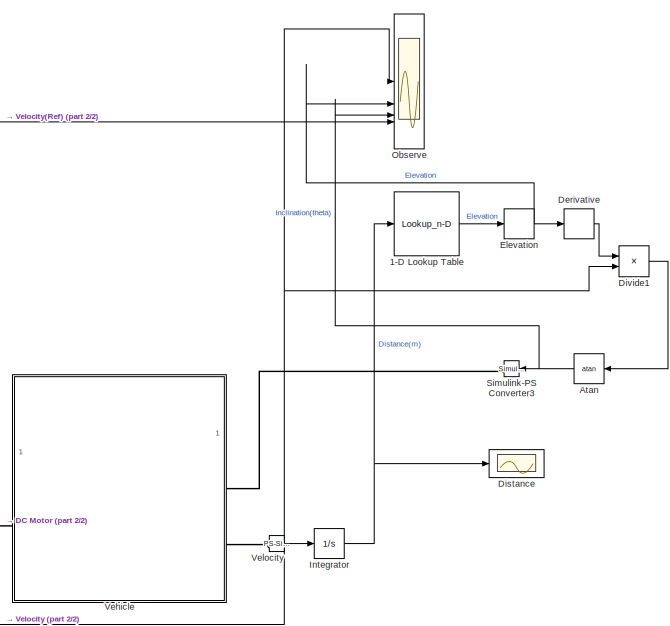
[diagram: root canvas - part 1/2, right side, full height]
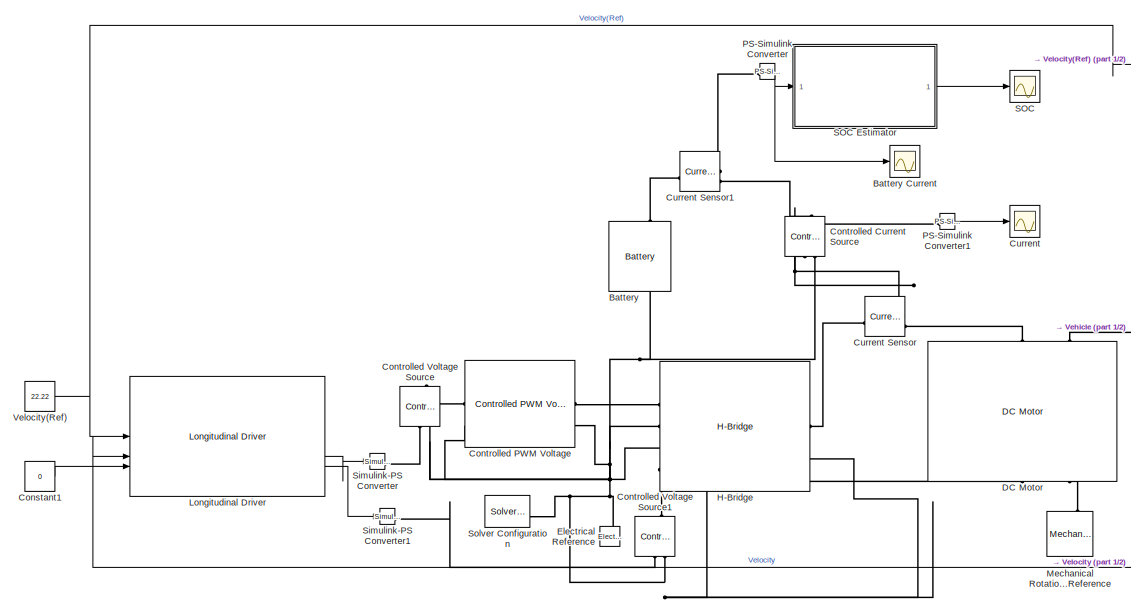
[diagram: root canvas - part 2/2, left side, full height]
MODEL slx_235e566d8c76
KIND model
CONFIG AbsTol = auto
CONFIG EnableMultiTasking = off
CONFIG FixedStep = 0.0001
CONFIG MaxStep = auto
CONFIG MinStep = auto
CONFIG RelTol = 1e-3
CONFIG SampleTimeConstraint = Unconstrained
CONFIG SolverName = VariableStepAuto
CONFIG StartTime = 0.0
CONFIG StopTime = 2000
BLOCK [Lookup_n-D] 1-D Lookup Table
  BreakpointsForDimension1 = [0;500;1109;1906;2242;2919;3704;4377;4819;5254;6077;6973;7737;8217;8449;8710;11168;12005;12765;13912;14479;14871;15584;16613;17498;18143;18679;19338;19680;19980;20831;21469;22494;23366;25011;25657;26271;26766;27520;28882;29318;30146;31408;31687;31828;40000]
  InputPortMap = u0
  InternalRulePriority = Speed
  LookupTableObject = Distance
  NumberOfTableDimensions = 1
  RndMeth = Simplest
  Table = [0;18.686;6.265;3.102;8.045;14.908;14.265;14.035;18.53;18.265;18.242;24.205;25.428;23.708;26.128;27.416;38.066;34.337;56.646;37.611;52.809;45.116;37.577;56.761;28.225;36.884;37.83;48.295;43.777;44.048;52.22;71.419;62.54;40.569;51.26;47.681;64.751;55.886;43.393;47.187;40.25;17.346;42.251;52.989;57.307;0]
BLOCK [Trigonometry] Atan
  Operator = atan
BLOCK [Reference] Battery  REF=batteryecm_lib/Battery
  LibrarySourceBlock = ee_lib/Sources/Battery
  NameLocation = right
  SourceBlock = batteryecm_lib/Battery
  SourceType = Battery
BLOCK [Scope] Battery Current
  Floating = off
  NumInputPorts = 1
  ScopeSpecificationString = Simulink.scopes.TimeScopeBlockCfg('CurrentConfiguration', extmgr.ConfigurationSet(extmgr.Configuration('Core','General UI',true),extmgr.Configuration('Core','Source UI',true),extmgr.Configuration('Sources','WiredSimulink',true,'DataLoggingVariableName','ScopeData5'),extmgr.Configuration('Visuals','Time Domain',true,'SerializedDisplays',{struct('MinYLimReal','-202.55655','MaxYLimReal','394.03244','...<+1465ch>
BLOCK [Constant] Constant1
  Value = 0
BLOCK [Reference] Controlled Current Source  REF=fl_lib/Electrical/Electrical Sources/Controlled Current
Source
  NameLocation = right
  SourceBlock = fl_lib/Electrical/Electrical Sources/Controlled Current\nSource
  SourceType = Controlled Current\nSource
BLOCK [Reference] Controlled PWM Voltage  REF=ee_lib/Integrated Circuits/Controlled PWM
Voltage
  SourceBlock = ee_lib/Integrated Circuits/Controlled PWM\nVoltage
  SourceType = Controlled PWM\nVoltage
BLOCK [Reference] Controlled Voltage Source  REF=fl_lib/Electrical/Electrical Sources/Controlled Voltage
Source
  NameLocation = right
  SourceBlock = fl_lib/Electrical/Electrical Sources/Controlled Voltage\nSource
  SourceType = Controlled Voltage\nSource
BLOCK [Reference] Controlled Voltage Source1  REF=fl_lib/Electrical/Electrical Sources/Controlled Voltage
Source
  NameLocation = right
  SourceBlock = fl_lib/Electrical/Electrical Sources/Controlled Voltage\nSource
  SourceType = Controlled Voltage\nSource
BLOCK [Scope] Current
  Floating = off
  NumInputPorts = 1
  ScopeSpecificationString = Simulink.scopes.TimeScopeBlockCfg('CurrentConfiguration', extmgr.ConfigurationSet(extmgr.Configuration('Core','General UI',true),extmgr.Configuration('Core','Source UI',true),extmgr.Configuration('Sources','WiredSimulink',true,'DataLoggingVariableName','ScopeData1'),extmgr.Configuration('Visuals','Time Domain',true,'SerializedDisplays',{struct('MinYLimReal','-478.18717','MaxYLimReal','1009.8025','...<+1466ch>
BLOCK [Reference] Current Sensor  REF=fl_lib/Electrical/Electrical Sensors/Current Sensor
  SourceBlock = fl_lib/Electrical/Electrical Sensors/Current Sensor
  SourceType = Current Sensor
BLOCK [Reference] Current Sensor1  REF=fl_lib/Electrical/Electrical Sensors/Current Sensor
  SourceBlock = fl_lib/Electrical/Electrical Sensors/Current Sensor
  SourceType = Current Sensor
BLOCK [Reference] DC Motor  REF=ee_lib/Electromechanical/Brushed Motors/DC Motor
  NameLocation = right
  SourceBlock = ee_lib/Electromechanical/Brushed Motors/DC Motor
  SourceType = DC Motor
BLOCK [Derivative] Derivative
BLOCK [Scope] Distance
  Floating = off
  NumInputPorts = 1
  ScopeSpecificationString = Simulink.scopes.TimeScopeBlockCfg('CurrentConfiguration', extmgr.ConfigurationSet(extmgr.Configuration('Core','General UI',true),extmgr.Configuration('Core','Source UI',true),extmgr.Configuration('Sources','WiredSimulink',true,'DataLoggingVariableName','ScopeData2'),extmgr.Configuration('Visuals','Time Domain',true,'SerializedDisplays',{struct('MinYLimReal','-5549.70811','MaxYLimReal','49947.37299...<+1483ch>
BLOCK [Product] Divide1
  Inputs = */
BLOCK [Reference] Electrical Reference  REF=fl_lib/Electrical/Electrical Elements/Electrical Reference
  NameLocation = right
  SourceBlock = fl_lib/Electrical/Electrical Elements/Electrical Reference
  SourceType = Electrical Reference
BLOCK [FirstOrderHold] Elevation
  AllowContinuousInput = on
  ErrorTolerance = inf
BLOCK [Reference] H-Bridge  REF=ee_lib/Semiconductors &
Converters/Converters/H-Bridge
  SourceBlock = ee_lib/Semiconductors &\nConverters/Converters/H-Bridge
  SourceType = H-Bridge
BLOCK [Integrator] Integrator
BLOCK [Reference] Longitudinal Driver  REF=autolibshared/Longitudinal Driver
  LibrarySourceBlock = autolibscenario/Longitudinal Driver
  SourceBlock = autolibshared/Longitudinal Driver
  SourceType = Longitudinal Driver
BLOCK [Reference] Mechanical Rotational Reference  REF=fl_lib/Mechanical/Rotational Elements/Mechanical
Rotational Reference
  NameLocation = right
  SourceBlock = fl_lib/Mechanical/Rotational Elements/Mechanical\nRotational Reference
  SourceType = Mechanical\nRotational Reference
BLOCK [Scope] Observe
  Floating = off
  NumInputPorts = 4
  ScopeSpecificationString = Simulink.scopes.TimeScopeBlockCfg('CurrentConfiguration', extmgr.ConfigurationSet(extmgr.Configuration('Core','General UI',true),extmgr.Configuration('Core','Source UI',true),extmgr.Configuration('Sources','WiredSimulink',true,'DataLoggingVariableName','ScopeData3'),extmgr.Configuration('Visuals','Time Domain',true,'SerializedDisplays',{struct('MinYLimReal','20.39433','MaxYLimReal','22.83487','YLa...<+3547ch>
BLOCK [Reference] PS-Simulink Converter  REF=nesl_utility/PS-Simulink
Converter
  SourceBlock = nesl_utility/PS-Simulink\nConverter
  SourceType = PS-Simulink\nConverter
BLOCK [Reference] PS-Simulink Converter1  REF=nesl_utility/PS-Simulink
Converter
  SourceBlock = nesl_utility/PS-Simulink\nConverter
  SourceType = PS-Simulink\nConverter
BLOCK [Scope] SOC
  Floating = off
  NumInputPorts = 1
  ScopeSpecificationString = Simulink.scopes.TimeScopeBlockCfg('CurrentConfiguration', extmgr.ConfigurationSet(extmgr.Configuration('Core','General UI',true),extmgr.Configuration('Core','Source UI',true),extmgr.Configuration('Sources','WiredSimulink',true,'DataLoggingVariableName','ScopeData4'),extmgr.Configuration('Visuals','Time Domain',true,'SerializedDisplays',{struct('MinYLimReal','0.47605','MaxYLimReal','1.05918','YLabe...<+1409ch>
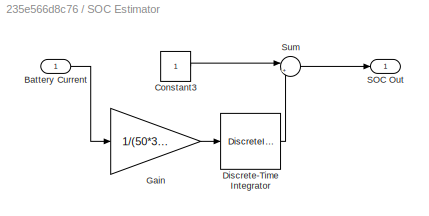
BLOCK [SubSystem] SOC Estimator
BLOCK [Inport] SOC Estimator/Battery Current
BLOCK [Constant] SOC Estimator/Constant3
BLOCK [DiscreteIntegrator] SOC Estimator/Discrete-Time Integrator
  ICPrevOutput = DiscIntNeverNeededParam
  ICPrevScaledInput = DiscIntNeverNeededParam
  InitialConditionSetting = Auto
  SampleTime = 0.01
BLOCK [Gain] SOC Estimator/Gain
  Gain = 1/(50*3600)
BLOCK [Outport] SOC Estimator/SOC Out
BLOCK [Sum] SOC Estimator/Sum
  Inputs = |++
BLOCK [Reference] Simulink-PS Converter  REF=nesl_utility/Simulink-PS
Converter
  SourceBlock = nesl_utility/Simulink-PS\nConverter
  SourceType = Simulink-PS\nConverter
BLOCK [Reference] Simulink-PS Converter1  REF=nesl_utility/Simulink-PS
Converter
  SourceBlock = nesl_utility/Simulink-PS\nConverter
  SourceType = Simulink-PS\nConverter
BLOCK [Reference] Simulink-PS Converter3  REF=nesl_utility/Simulink-PS
Converter
  NameLocation = top
  SourceBlock = nesl_utility/Simulink-PS\nConverter
  SourceType = Simulink-PS\nConverter
BLOCK [Reference] Solver Configuration  REF=nesl_utility/Solver
Configuration
  SourceBlock = nesl_utility/Solver\nConfiguration
  SourceType = Solver\nConfiguration
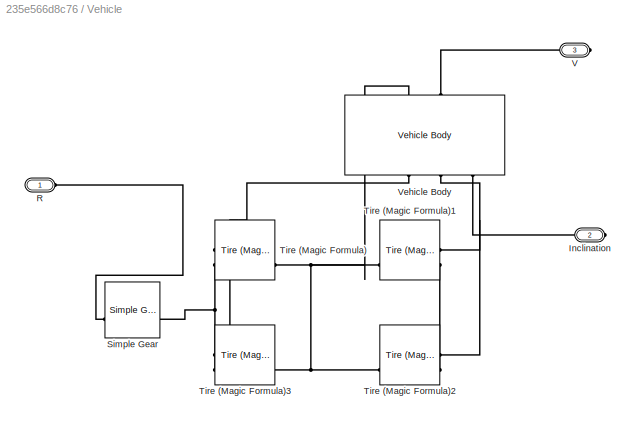
BLOCK [SubSystem] Vehicle
BLOCK [PMIOPort] Vehicle/Inclination
  Port = 2
  Side = Right
BLOCK [PMIOPort] Vehicle/R
  Side = Left
BLOCK [Reference] Vehicle/Simple Gear  REF=sdl_lib/Gears/Simple Gear
  SourceBlock = sdl_lib/Gears/Simple Gear
  SourceType = Simple Gear
BLOCK [Reference] Vehicle/Tire (Magic Formula)  REF=sdl_lib/Tires & Vehicles/Tire (Magic Formula)
  SourceBlock = sdl_lib/Tires & Vehicles/Tire (Magic Formula)
  SourceType = Tire (Magic Formula)
BLOCK [Reference] Vehicle/Tire (Magic Formula)1  REF=sdl_lib/Tires & Vehicles/Tire (Magic Formula)
  SourceBlock = sdl_lib/Tires & Vehicles/Tire (Magic Formula)
  SourceType = Tire (Magic Formula)
BLOCK [Reference] Vehicle/Tire (Magic Formula)2  REF=sdl_lib/Tires & Vehicles/Tire (Magic Formula)
  SourceBlock = sdl_lib/Tires & Vehicles/Tire (Magic Formula)
  SourceType = Tire (Magic Formula)
BLOCK [Reference] Vehicle/Tire (Magic Formula)3  REF=sdl_lib/Tires & Vehicles/Tire (Magic Formula)
  SourceBlock = sdl_lib/Tires & Vehicles/Tire (Magic Formula)
  SourceType = Tire (Magic Formula)
BLOCK [PMIOPort] Vehicle/V
  Port = 3
  Side = Right
BLOCK [Reference] Vehicle/Vehicle Body  REF=sdl_lib/Tires & Vehicles/Vehicle Body
  NameLocation = right
  SourceBlock = sdl_lib/Tires & Vehicles/Vehicle Body
  SourceType = Vehicle Body
BLOCK [Reference] Velocity  REF=nesl_utility/PS-Simulink
Converter
  SourceBlock = nesl_utility/PS-Simulink\nConverter
  SourceType = PS-Simulink\nConverter
BLOCK [Constant] Velocity(Ref)
  Value = 22.22
LINE 1-D Lookup Table:1 -> Elevation:1
NET Atan:1 -> Observe:3, Simulink-PS Converter3:1
LINE Constant1:1 -> Longitudinal Driver:3
LINE Derivative:1 -> Divide1:1
LINE Divide1:1 -> Atan:1
NET Elevation:1 -> Derivative:1, Observe:2
NET Integrator:1 -> 1-D Lookup Table:1, Distance:1
LINE Longitudinal Driver:2 -> Simulink-PS Converter:1
LINE Longitudinal Driver:3 -> Simulink-PS Converter1:1
LINE PS-Simulink Converter1:1 -> Current:1
NET PS-Simulink Converter:1 -> Battery Current:1, SOC Estimator:1
LINE SOC Estimator/Battery Current:1 -> SOC Estimator/Gain:1
LINE SOC Estimator/Constant3:1 -> SOC Estimator/Sum:1
LINE SOC Estimator/Discrete-Time Integrator:1 -> SOC Estimator/Sum:2
LINE SOC Estimator/Gain:1 -> SOC Estimator/Discrete-Time Integrator:1
LINE SOC Estimator/Sum:1 -> SOC Estimator/SOC Out:1
LINE SOC Estimator:1 -> SOC:1
NET Velocity(Ref):1 -> Longitudinal Driver:1, Observe:4
NET Velocity:1 -> Divide1:2, Integrator:1, Longitudinal Driver:2, Observe:1
PLINE Battery:LConn1 -- Current Sensor1:LConn1
PNET net1: Battery:RConn1 -- Controlled Current Source:RConn2 -- Controlled PWM Voltage:LConn2 -- Controlled PWM Voltage:RConn2 -- Controlled Voltage Source1:RConn2 -- Controlled Voltage Source:RConn2 -- DC Motor:RConn1 -- Electrical Reference:LConn1 -- H-Bridge:LConn2 -- H-Bridge:LConn3 -- H-Bridge:RConn2 -- Solver Configuration:RConn1
PLINE Controlled Current Source:LConn1 -- Current Sensor1:RConn2
PNET net2: Controlled Current Source:RConn1 -- Current Sensor:RConn1 -- PS-Simulink Converter1:LConn1
PLINE Controlled PWM Voltage:LConn1 -- Controlled Voltage Source:LConn1
PLINE Controlled PWM Voltage:RConn1 -- H-Bridge:LConn1
PLINE Controlled Voltage Source1:LConn1 -- H-Bridge:LConn4
PLINE Controlled Voltage Source1:RConn1 -- Simulink-PS Converter1:RConn1
PLINE Controlled Voltage Source:RConn1 -- Simulink-PS Converter:RConn1
PLINE Current Sensor1:RConn1 -- PS-Simulink Converter:LConn1
PLINE Current Sensor:LConn1 -- H-Bridge:RConn1
PLINE Current Sensor:RConn2 -- DC Motor:LConn1
PLINE DC Motor:LConn2 -- Vehicle:LConn1
PLINE DC Motor:RConn2 -- Mechanical Rotational Reference:LConn1
PLINE Simulink-PS Converter3:RConn1 -- Vehicle:RConn1
PLINE Vehicle/Inclination:RConn1 -- Vehicle/Vehicle Body:RConn3
PLINE Vehicle/R:RConn1 -- Vehicle/Simple Gear:LConn1
PNET net3: Vehicle/Simple Gear:RConn1 -- Vehicle/Tire (Magic Formula)3:LConn2 -- Vehicle/Tire (Magic Formula):LConn2
PNET net4: Vehicle/Tire (Magic Formula)1:LConn1 -- Vehicle/Tire (Magic Formula)2:LConn1 -- Vehicle/Vehicle Body:RConn2
PLINE Vehicle/Tire (Magic Formula)1:LConn2 -- Vehicle/Tire (Magic Formula)2:LConn2
PNET net5: Vehicle/Tire (Magic Formula)1:RConn2 -- Vehicle/Tire (Magic Formula)2:RConn2 -- Vehicle/Tire (Magic Formula)3:RConn2 -- Vehicle/Tire (Magic Formula):RConn2 -- Vehicle/Vehicle Body:LConn1
PNET net6: Vehicle/Tire (Magic Formula)3:LConn1 -- Vehicle/Tire (Magic Formula):LConn1 -- Vehicle/Vehicle Body:RConn1
PLINE Vehicle/V:RConn1 -- Vehicle/Vehicle Body:LConn2
PLINE Vehicle:RConn2 -- Velocity:LConn1
note: NET lines group one-source signal fan-out (src -> all destinations, sorted); 1:1 wires keep LINE; PNET lines group multi-terminal physical nets as a canonical sorted terminal list (undirected conserving connections); 2-terminal nets keep the pairwise PLINE form
